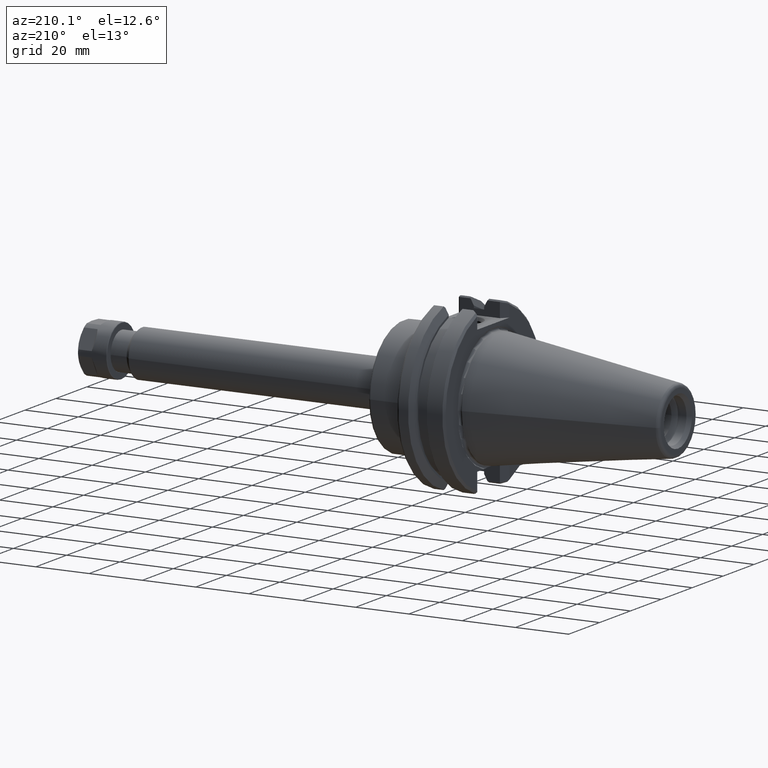
[diagram: clean part render]
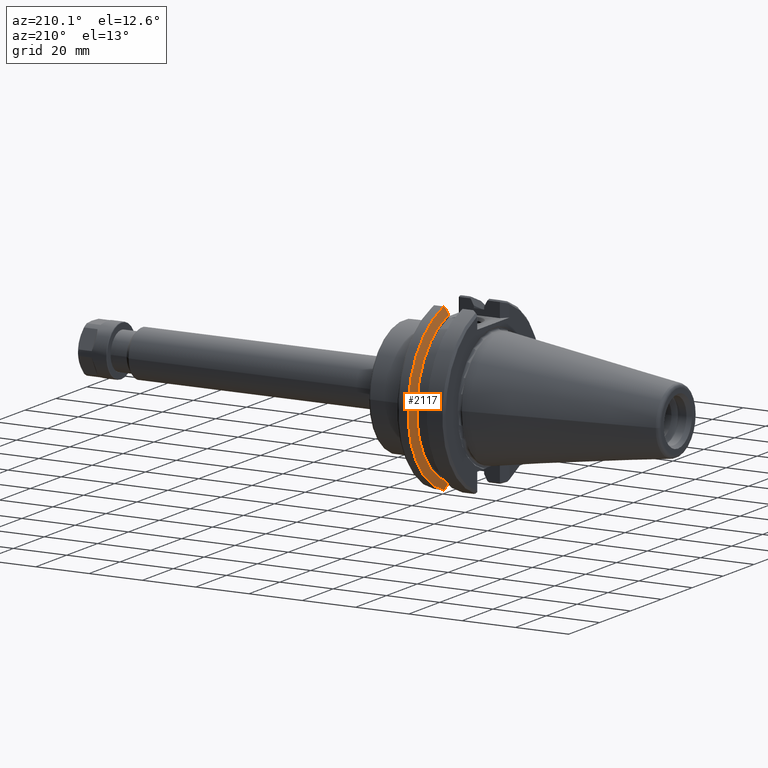
[diagram: same view with one face highlighted and labeled with its STEP entity id]
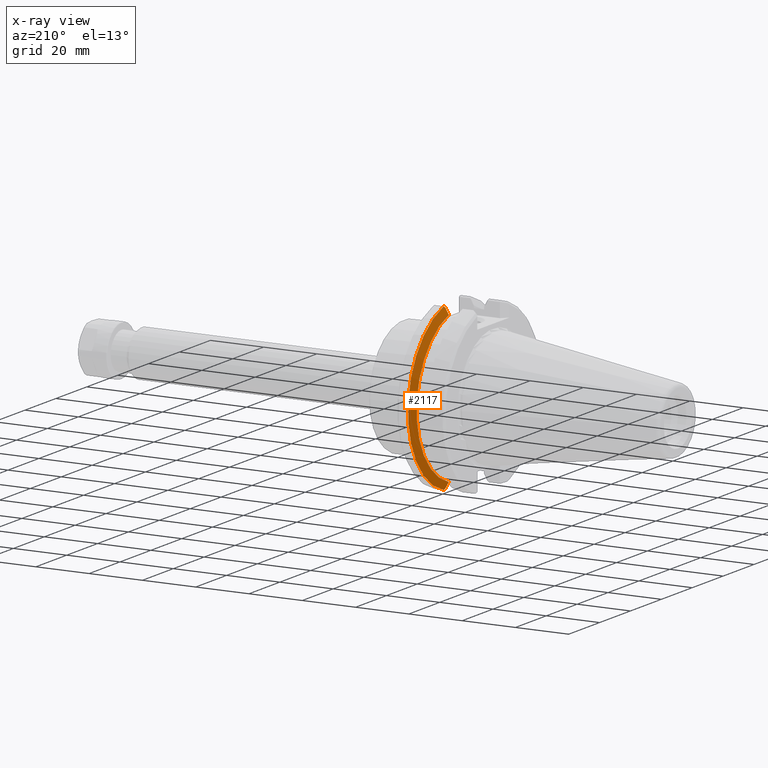
[diagram: x-ray of the same camera — body ghosted, the highlighted face saturated]
A machine part, auxiliary view. The second image highlights one B-rep face of the part: STEP entity #2117.
The next image is the same camera in x-ray: the body ghosted, the highlighted face saturated — about 0% of this face is hidden behind the body in this view.
In plain terms, the highlighted conical surface has half-angle 60 deg.
Its self-contained STEP definition (entity closure, byte-faithful):
#44=(
BOUNDED_CURVE()
B_SPLINE_CURVE(2,(#4005,#4006,#4007),.UNSPECIFIED.,.F.,.F.)
B_SPLINE_CURVE_WITH_KNOTS((3,3),(0.070089065331503,0.330892155380645),
 .UNSPECIFIED.)
CURVE()
GEOMETRIC_REPRESENTATION_ITEM()
RATIONAL_B_SPLINE_CURVE((1.00037936412933,1.00089549356831,1.))
REPRESENTATION_ITEM('')
);
#62=(
BOUNDED_CURVE()
B_SPLINE_CURVE(2,(#4137,#4138,#4139),.UNSPECIFIED.,.F.,.F.)
B_SPLINE_CURVE_WITH_KNOTS((3,3),(0.28600217724328,0.361909205211998),
 .UNSPECIFIED.)
CURVE()
GEOMETRIC_REPRESENTATION_ITEM()
RATIONAL_B_SPLINE_CURVE((1.00047362249825,1.00029966265216,1.))
REPRESENTATION_ITEM('')
);
#63=(
BOUNDED_CURVE()
B_SPLINE_CURVE(2,(#4151,#4152,#4153),.UNSPECIFIED.,.F.,.F.)
B_SPLINE_CURVE_WITH_KNOTS((3,3),(0.,0.260803090047781),.UNSPECIFIED.)
CURVE()
GEOMETRIC_REPRESENTATION_ITEM()
RATIONAL_B_SPLINE_CURVE((1.,1.00089549356625,1.00037936412846))
REPRESENTATION_ITEM('')
);
#64=(
BOUNDED_CURVE()
B_SPLINE_CURVE(2,(#4162,#4163,#4164),.UNSPECIFIED.,.F.,.F.)
B_SPLINE_CURVE_WITH_KNOTS((3,3),(0.,0.0759070279682398),.UNSPECIFIED.)
CURVE()
GEOMETRIC_REPRESENTATION_ITEM()
RATIONAL_B_SPLINE_CURVE((1.,1.0002996626519,1.00047362249785))
REPRESENTATION_ITEM('')
);
#110=CONICAL_SURFACE('',#2300,1.2859099179857,59.9999999999907);
#568=FACE_OUTER_BOUND('',#735,.T.);
#735=EDGE_LOOP('',(#1746,#1747,#1748,#1749,#1750,#1751));
#861=CIRCLE('',#2269,1.25);
#873=CIRCLE('',#2301,1.14031983597144);
#1016=VERTEX_POINT('',#4002);
#1017=VERTEX_POINT('',#4004);
#1049=VERTEX_POINT('',#4136);
#1050=VERTEX_POINT('',#4142);
#1052=VERTEX_POINT('',#4148);
#1053=VERTEX_POINT('',#4150);
#1241=EDGE_CURVE('',#1017,#1016,#44,.T.);
#1290=EDGE_CURVE('',#1017,#1049,#62,.T.);
#1292=EDGE_CURVE('',#1049,#1050,#861,.T.);
#1296=EDGE_CURVE('',#1053,#1052,#63,.T.);
#1301=EDGE_CURVE('',#1050,#1052,#64,.T.);
#1318=EDGE_CURVE('',#1053,#1016,#873,.T.);
#1746=ORIENTED_EDGE('',*,*,#1290,.F.);
#1747=ORIENTED_EDGE('',*,*,#1241,.T.);
#1748=ORIENTED_EDGE('',*,*,#1318,.F.);
#1749=ORIENTED_EDGE('',*,*,#1296,.T.);
#1750=ORIENTED_EDGE('',*,*,#1301,.F.);
#1751=ORIENTED_EDGE('',*,*,#1292,.F.);
#2117=ADVANCED_FACE('',(#568),#110,.T.);
#2269=AXIS2_PLACEMENT_3D('',#4143,#2652,#2653);
#2300=AXIS2_PLACEMENT_3D('',#4237,#2722,#2723);
#2301=AXIS2_PLACEMENT_3D('',#4238,#2724,#2725);
#2652=DIRECTION('center_axis',(1.,0.,0.));
#2653=DIRECTION('ref_axis',(-1.62451355720802E-13,1.,0.));
#2722=DIRECTION('center_axis',(1.,1.62451355720802E-13,0.));
#2723=DIRECTION('ref_axis',(-1.62482077846417E-13,1.,0.));
#2724=DIRECTION('center_axis',(-1.,-1.62451355720802E-13,0.));
#2725=DIRECTION('ref_axis',(-1.62482077846417E-13,1.,0.));
#4002=CARTESIAN_POINT('',(0.513849999999924,0.320000000000302,-1.09449957894461));
#4004=CARTESIAN_POINT('',(0.563230740453672,0.32000000000031,-1.18334597694528));
#4005=CARTESIAN_POINT('Ctrl Pts',(0.563230740453672,0.32000000000031,-1.18334597694528));
#4006=CARTESIAN_POINT('Ctrl Pts',(0.537577332826975,0.320000000000306,-1.13731701223152));
#4007=CARTESIAN_POINT('Ctrl Pts',(0.51384999999979,0.320000000000302,-1.09449957894437));
#4136=CARTESIAN_POINT('',(0.577173872226652,0.339628138321779,-1.20297661143519));
#4137=CARTESIAN_POINT('Ctrl Pts',(0.563230740453672,0.32000000000031,-1.18334597694528));
#4138=CARTESIAN_POINT('Ctrl Pts',(0.570112454178538,0.329718339663518,-1.19306555251849));
#4139=CARTESIAN_POINT('Ctrl Pts',(0.577173872227151,0.339628138322648,-1.20297661143603));
#4142=CARTESIAN_POINT('',(0.577173872226652,0.339628138321787,1.20297661143518));
#4143=CARTESIAN_POINT('Origin',(0.577173872226652,0.,0.));
#4148=CARTESIAN_POINT('',(0.563230740453661,0.320000000000281,1.18334597694527));
#4150=CARTESIAN_POINT('',(0.513849999999924,0.320000000000281,1.09449957894462));
#4151=CARTESIAN_POINT('Ctrl Pts',(0.51384999999979,0.320000000000281,1.09449957894438));
#4152=CARTESIAN_POINT('Ctrl Pts',(0.537577332827406,0.320000000000281,1.13731701223231));
#4153=CARTESIAN_POINT('Ctrl Pts',(0.563230740453661,0.320000000000281,1.18334597694527));
#4162=CARTESIAN_POINT('Ctrl Pts',(0.577173872227003,0.339628138322426,1.20297661143582));
#4163=CARTESIAN_POINT('Ctrl Pts',(0.570112454178459,0.329718339663392,1.19306555251838));
#4164=CARTESIAN_POINT('Ctrl Pts',(0.563230740453661,0.320000000000281,1.18334597694527));
#4237=CARTESIAN_POINT('Origin',(0.59790647304228,3.15424726389789E-13,0.));
#4238=CARTESIAN_POINT('Origin',(0.513849999999975,3.01769638386957E-13,
0.));